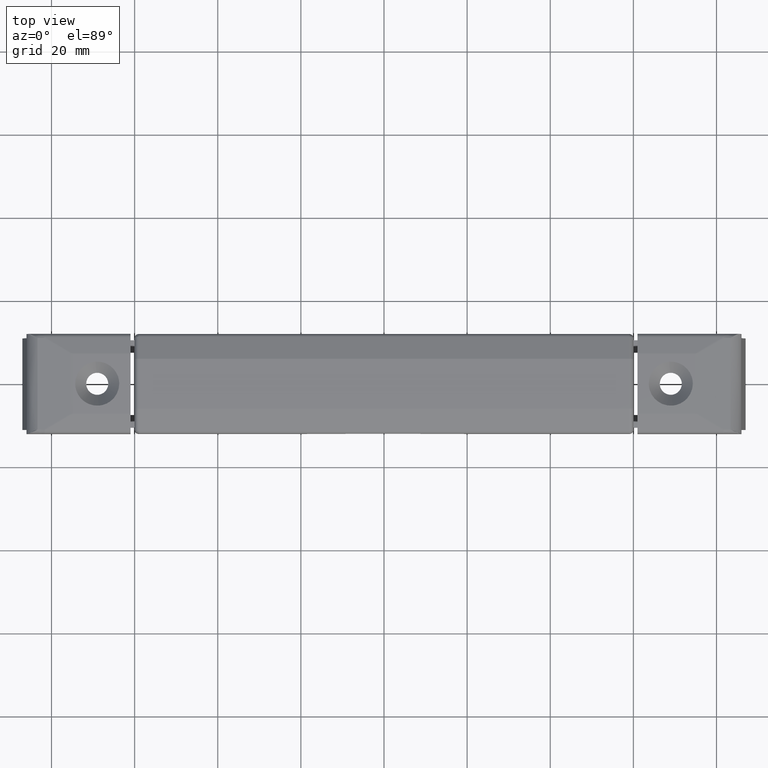
[diagram: clean part render]
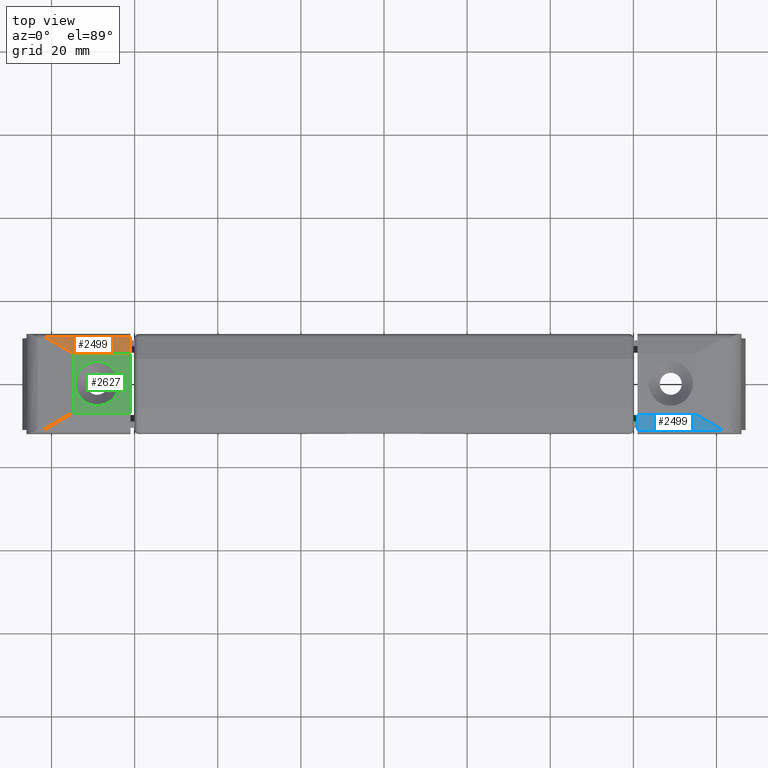
[diagram: same view with three faces highlighted in distinct colors, each labeled with its STEP entity id]
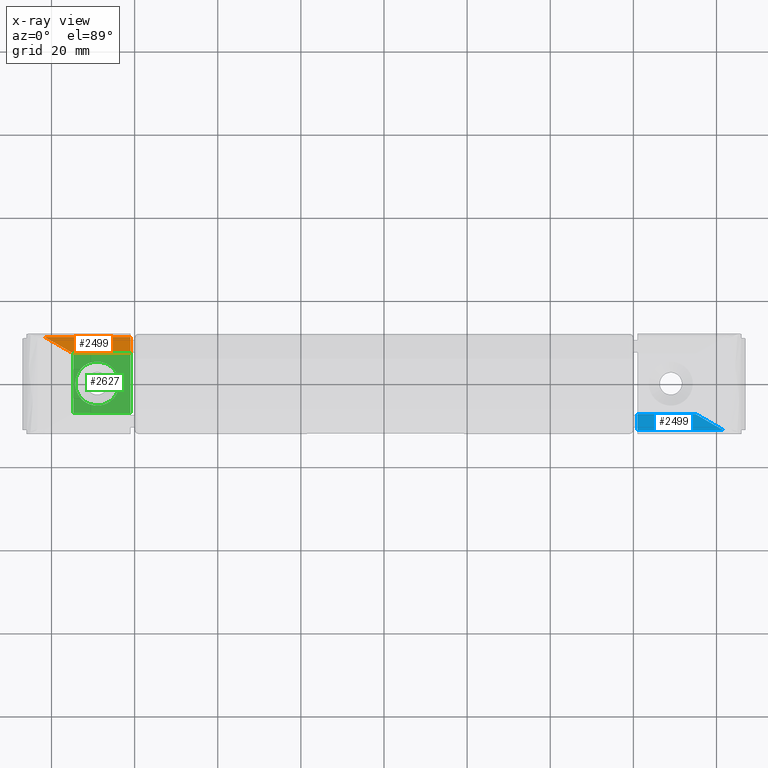
[diagram: x-ray of the same camera — body ghosted, the three highlighted faces saturated]
A machine part, top view with three faces highlighted in distinct colors.
The next image is the same camera in x-ray (body ghosted, the three faces saturated) — at least one of them is partly hidden behind the body in this view.
Their STEP definitions:

[orange] entity #2499 — the highlighted face is a freeform B-spline surface patch.
#1761=CARTESIAN_POINT('',(81.595554536665205,-11.206047879611940,7.666989918170690));
#1762=VERTEX_POINT('',#1761);
#1808=CARTESIAN_POINT('',(61.0,-11.206047879612001,7.666989918170660));
#1809=VERTEX_POINT('',#1808);
#1810=CARTESIAN_POINT('',(61.0,-11.206047879612001,7.666989918170660));
#1811=CARTESIAN_POINT('',(81.595554536665205,-11.206047879611940,7.666989918170690));
#1812=QUASI_UNIFORM_CURVE('',1,(#1810,#1811),.UNSPECIFIED.,.F.,.U.);
#1813=EDGE_CURVE('',#1809,#1762,#1812,.T.);
#2333=CARTESIAN_POINT('',(75.000701993342688,-7.351906603411980,8.478541910858889));
#2334=VERTEX_POINT('',#2333);
#2356=CARTESIAN_POINT('',(61.0,-7.351906603411980,8.478541910858889));
#2357=VERTEX_POINT('',#2356);
#2371=CARTESIAN_POINT('',(75.000701993342688,-7.351906603411980,8.478541910858889));
#2372=CARTESIAN_POINT('',(61.0,-7.351906603411980,8.478541910858889));
#2373=QUASI_UNIFORM_CURVE('',1,(#2371,#2372),.UNSPECIFIED.,.F.,.U.);
#2374=EDGE_CURVE('',#2334,#2357,#2373,.T.);
#2400=CARTESIAN_POINT('',(81.595554536665205,-11.206047879611940,7.666989918170690));
#2401=CARTESIAN_POINT('',(75.000701993342688,-7.351906603411980,8.478541910858889));
#2402=QUASI_UNIFORM_CURVE('',1,(#2400,#2401),.UNSPECIFIED.,.F.,.U.);
#2403=EDGE_CURVE('',#1762,#2334,#2402,.T.);
#2484=CARTESIAN_POINT('',(59.971251943648177,-7.159392326495707,8.519078916084196));
#2485=CARTESIAN_POINT('',(59.971251943648177,-11.398562328821820,7.626452876666182));
#2486=CARTESIAN_POINT('',(82.624306091650553,-7.159392326495707,8.519078916084196));
#2487=CARTESIAN_POINT('',(82.624306091650553,-11.398562328821820,7.626452876666182));
#2488=B_SPLINE_SURFACE_WITH_KNOTS('',1,1,((#2484,#2486),(#2485,#2487)),.UNSPECIFIED.,.F.,.F.,.U.,(2,2),(2,2),(0.0,4.332129217240484),(0.0,22.653054148002379),.UNSPECIFIED.);
#2489=CARTESIAN_POINT('',(61.0,-11.206047879612001,7.666989918170660));
#2490=CARTESIAN_POINT('',(61.0,-7.351906603411980,8.478541910858889));
#2491=QUASI_UNIFORM_CURVE('',1,(#2489,#2490),.UNSPECIFIED.,.F.,.U.);
#2492=EDGE_CURVE('',#1809,#2357,#2491,.T.);
#2493=ORIENTED_EDGE('',*,*,#2492,.F.);
#2494=ORIENTED_EDGE('',*,*,#1813,.T.);
#2495=ORIENTED_EDGE('',*,*,#2403,.T.);
#2496=ORIENTED_EDGE('',*,*,#2374,.T.);
#2497=EDGE_LOOP('',(#2493,#2494,#2495,#2496));
#2498=FACE_OUTER_BOUND('',#2497,.T.);
#2499=ADVANCED_FACE('',(#2498),#2488,.T.);

[blue] entity #2499 — the highlighted face is a freeform B-spline surface patch.
#1761=CARTESIAN_POINT('',(81.595554536665205,-11.206047879611940,7.666989918170690));
#1762=VERTEX_POINT('',#1761);
#1808=CARTESIAN_POINT('',(61.0,-11.206047879612001,7.666989918170660));
#1809=VERTEX_POINT('',#1808);
#1810=CARTESIAN_POINT('',(61.0,-11.206047879612001,7.666989918170660));
#1811=CARTESIAN_POINT('',(81.595554536665205,-11.206047879611940,7.666989918170690));
#1812=QUASI_UNIFORM_CURVE('',1,(#1810,#1811),.UNSPECIFIED.,.F.,.U.);
#1813=EDGE_CURVE('',#1809,#1762,#1812,.T.);
#2333=CARTESIAN_POINT('',(75.000701993342688,-7.351906603411980,8.478541910858889));
#2334=VERTEX_POINT('',#2333);
#2356=CARTESIAN_POINT('',(61.0,-7.351906603411980,8.478541910858889));
#2357=VERTEX_POINT('',#2356);
#2371=CARTESIAN_POINT('',(75.000701993342688,-7.351906603411980,8.478541910858889));
#2372=CARTESIAN_POINT('',(61.0,-7.351906603411980,8.478541910858889));
#2373=QUASI_UNIFORM_CURVE('',1,(#2371,#2372),.UNSPECIFIED.,.F.,.U.);
#2374=EDGE_CURVE('',#2334,#2357,#2373,.T.);
#2400=CARTESIAN_POINT('',(81.595554536665205,-11.206047879611940,7.666989918170690));
#2401=CARTESIAN_POINT('',(75.000701993342688,-7.351906603411980,8.478541910858889));
#2402=QUASI_UNIFORM_CURVE('',1,(#2400,#2401),.UNSPECIFIED.,.F.,.U.);
#2403=EDGE_CURVE('',#1762,#2334,#2402,.T.);
#2484=CARTESIAN_POINT('',(59.971251943648177,-7.159392326495707,8.519078916084196));
#2485=CARTESIAN_POINT('',(59.971251943648177,-11.398562328821820,7.626452876666182));
#2486=CARTESIAN_POINT('',(82.624306091650553,-7.159392326495707,8.519078916084196));
#2487=CARTESIAN_POINT('',(82.624306091650553,-11.398562328821820,7.626452876666182));
#2488=B_SPLINE_SURFACE_WITH_KNOTS('',1,1,((#2484,#2486),(#2485,#2487)),.UNSPECIFIED.,.F.,.F.,.U.,(2,2),(2,2),(0.0,4.332129217240484),(0.0,22.653054148002379),.UNSPECIFIED.);
#2489=CARTESIAN_POINT('',(61.0,-11.206047879612001,7.666989918170660));
#2490=CARTESIAN_POINT('',(61.0,-7.351906603411980,8.478541910858889));
#2491=QUASI_UNIFORM_CURVE('',1,(#2489,#2490),.UNSPECIFIED.,.F.,.U.);
#2492=EDGE_CURVE('',#1809,#2357,#2491,.T.);
#2493=ORIENTED_EDGE('',*,*,#2492,.F.);
#2494=ORIENTED_EDGE('',*,*,#1813,.T.);
#2495=ORIENTED_EDGE('',*,*,#2403,.T.);
#2496=ORIENTED_EDGE('',*,*,#2374,.T.);
#2497=EDGE_LOOP('',(#2493,#2494,#2495,#2496));
#2498=FACE_OUTER_BOUND('',#2497,.T.);
#2499=ADVANCED_FACE('',(#2498),#2488,.T.);

[green] entity #2627 — the highlighted face is a freeform B-spline surface patch.
#1151=CARTESIAN_POINT('',(68.584167827150992,5.283660655590175,8.499998709378037));
#1152=VERTEX_POINT('',#1151);
#1158=CARTESIAN_POINT('',(63.700000000000010,-1.421085E-014,8.500000000000000));
#1159=VERTEX_POINT('',#1158);
#1160=CARTESIAN_POINT('',(63.700000000000010,-1.421085E-014,8.500000000000000));
#1161=CARTESIAN_POINT('',(63.700000050630400,4.899269830495595,8.499999354689019));
#1162=CARTESIAN_POINT('',(68.584167827150992,5.283660655590175,8.499998709378037));
#1170=(BOUNDED_CURVE()B_SPLINE_CURVE(2,(#1160,#1161,#1162),.UNSPECIFIED.,.F.,.U.)B_SPLINE_CURVE_WITH_KNOTS((3,3),(0.0,0.236331330911299),.UNSPECIFIED.)CURVE()GEOMETRIC_REPRESENTATION_ITEM()RATIONAL_B_SPLINE_CURVE((1.0,0.723120623131690,0.969723419360811))REPRESENTATION_ITEM(''));
#1171=EDGE_CURVE('',#1159,#1152,#1170,.T.);
#1173=CARTESIAN_POINT('',(69.415832172849008,-5.283660655590203,8.499998709378037));
#1174=VERTEX_POINT('',#1173);
#1175=CARTESIAN_POINT('',(69.415832172849008,-5.283660655590203,8.499998709378037));
#1176=CARTESIAN_POINT('',(69.208236998929365,-5.299998736721528,8.499998732815298));
#1177=CARTESIAN_POINT('',(68.999999902567339,-5.299998761997650,8.499998758169577));
#1178=CARTESIAN_POINT('',(63.699999953197732,-5.299999405319400,8.499999403480562));
#1179=CARTESIAN_POINT('',(63.700000000000010,-1.421085E-014,8.500000000000000));
#1187=(BOUNDED_CURVE()B_SPLINE_CURVE(2,(#1175,#1176,#1177,#1178,#1179),.UNSPECIFIED.,.F.,.U.)B_SPLINE_CURVE_WITH_KNOTS((3,2,3),(0.736331330911299,0.750000000000000,1.0),.UNSPECIFIED.)CURVE()GEOMETRIC_REPRESENTATION_ITEM()RATIONAL_B_SPLINE_CURVE((0.969723419360811,0.983986158054858,1.0,0.707106781186548,1.0))REPRESENTATION_ITEM(''));
#1188=EDGE_CURVE('',#1174,#1159,#1187,.T.);
#1225=CARTESIAN_POINT('',(74.300000000000011,-1.421085E-014,8.500000000000000));
#1226=VERTEX_POINT('',#1225);
#1227=CARTESIAN_POINT('',(74.300000000000011,-1.421085E-014,8.500000000000000));
#1228=CARTESIAN_POINT('',(74.299999949369621,-4.899269830495612,8.499999354689020));
#1229=CARTESIAN_POINT('',(69.415832172849008,-5.283660655590203,8.499998709378037));
#1237=(BOUNDED_CURVE()B_SPLINE_CURVE(2,(#1227,#1228,#1229),.UNSPECIFIED.,.F.,.U.)B_SPLINE_CURVE_WITH_KNOTS((3,3),(0.500000000000000,0.736331330911299),.UNSPECIFIED.)CURVE()GEOMETRIC_REPRESENTATION_ITEM()RATIONAL_B_SPLINE_CURVE((1.0,0.723120623131690,0.969723419360810))REPRESENTATION_ITEM(''));
#1238=EDGE_CURVE('',#1226,#1174,#1237,.T.);
#1240=CARTESIAN_POINT('',(68.584167827150992,5.283660655590175,8.499998709378037));
#1241=CARTESIAN_POINT('',(68.791763001070635,5.299998736721500,8.499998732815298));
#1242=CARTESIAN_POINT('',(69.000000097432689,5.299998761997624,8.499998758169577));
#1243=CARTESIAN_POINT('',(74.300000046802310,5.299999405319372,8.499999403480562));
#1244=CARTESIAN_POINT('',(74.300000000000011,-1.421085E-014,8.500000000000000));
#1252=(BOUNDED_CURVE()B_SPLINE_CURVE(2,(#1240,#1241,#1242,#1243,#1244),.UNSPECIFIED.,.F.,.U.)B_SPLINE_CURVE_WITH_KNOTS((3,2,3),(0.236331330911299,0.250000000000000,0.500000000000000),.UNSPECIFIED.)CURVE()GEOMETRIC_REPRESENTATION_ITEM()RATIONAL_B_SPLINE_CURVE((0.969723419360811,0.983986158054858,1.0,0.707106781186548,1.0))REPRESENTATION_ITEM(''));
#1253=EDGE_CURVE('',#1152,#1226,#1252,.T.);
#1437=CARTESIAN_POINT('',(74.755509966714001,7.145858723799910,8.500000000000000));
#1438=VERTEX_POINT('',#1437);
#1448=CARTESIAN_POINT('',(74.755509966714001,-7.145858723799910,8.500000000000000));
#1449=VERTEX_POINT('',#1448);
#1450=CARTESIAN_POINT('',(74.755509966714001,-7.145858723799910,8.500000000000000));
#1451=CARTESIAN_POINT('',(74.755509966714001,7.145858723799910,8.500000000000000));
#1452=QUASI_UNIFORM_CURVE('',1,(#1450,#1451),.UNSPECIFIED.,.F.,.U.);
#1453=EDGE_CURVE('',#1449,#1438,#1452,.T.);
#2287=CARTESIAN_POINT('',(61.0,7.145858723799910,8.500000000000000));
#2288=VERTEX_POINT('',#2287);
#2289=CARTESIAN_POINT('',(74.755509966714001,7.145858723799910,8.500000000000000));
#2290=CARTESIAN_POINT('',(61.0,7.145858723799910,8.500000000000000));
#2291=QUASI_UNIFORM_CURVE('',1,(#2289,#2290),.UNSPECIFIED.,.F.,.U.);
#2292=EDGE_CURVE('',#1438,#2288,#2291,.T.);
#2349=CARTESIAN_POINT('',(61.0,-7.145858723799910,8.500000000000000));
#2350=VERTEX_POINT('',#2349);
#2351=CARTESIAN_POINT('',(61.0,-7.145858723799910,8.500000000000000));
#2352=CARTESIAN_POINT('',(74.755509966714001,-7.145858723799910,8.500000000000000));
#2353=QUASI_UNIFORM_CURVE('',1,(#2351,#2352),.UNSPECIFIED.,.F.,.U.);
#2354=EDGE_CURVE('',#2350,#1449,#2353,.T.);
#2606=CARTESIAN_POINT('',(60.312912402112168,-7.859730116767819,8.500000000000000));
#2607=CARTESIAN_POINT('',(75.442595965811876,-7.859730116767819,8.500000000000000));
#2608=CARTESIAN_POINT('',(60.312912402112168,7.859730372323642,8.500000000000000));
#2609=CARTESIAN_POINT('',(75.442595965811876,7.859730372323642,8.500000000000000));
#2610=B_SPLINE_SURFACE_WITH_KNOTS('',1,1,((#2606,#2608),(#2607,#2609)),.UNSPECIFIED.,.F.,.F.,.U.,(2,2),(2,2),(0.0,15.129683563699709),(0.0,15.719460489091460),.UNSPECIFIED.);
#2611=ORIENTED_EDGE('',*,*,#2354,.T.);
#2612=ORIENTED_EDGE('',*,*,#1453,.T.);
#2613=ORIENTED_EDGE('',*,*,#2292,.T.);
#2614=CARTESIAN_POINT('',(61.0,7.145858723799910,8.500000000000000));
#2615=CARTESIAN_POINT('',(61.0,-7.145858723799910,8.500000000000000));
#2616=QUASI_UNIFORM_CURVE('',1,(#2614,#2615),.UNSPECIFIED.,.F.,.U.);
#2617=EDGE_CURVE('',#2288,#2350,#2616,.T.);
#2618=ORIENTED_EDGE('',*,*,#2617,.T.);
#2619=EDGE_LOOP('',(#2611,#2612,#2613,#2618));
#2620=FACE_OUTER_BOUND('',#2619,.T.);
#2621=ORIENTED_EDGE('',*,*,#1238,.T.);
#2622=ORIENTED_EDGE('',*,*,#1188,.T.);
#2623=ORIENTED_EDGE('',*,*,#1171,.T.);
#2624=ORIENTED_EDGE('',*,*,#1253,.T.);
#2625=EDGE_LOOP('',(#2621,#2622,#2623,#2624));
#2626=FACE_BOUND('',#2625,.T.);
#2627=ADVANCED_FACE('',(#2620,#2626),#2610,.T.);